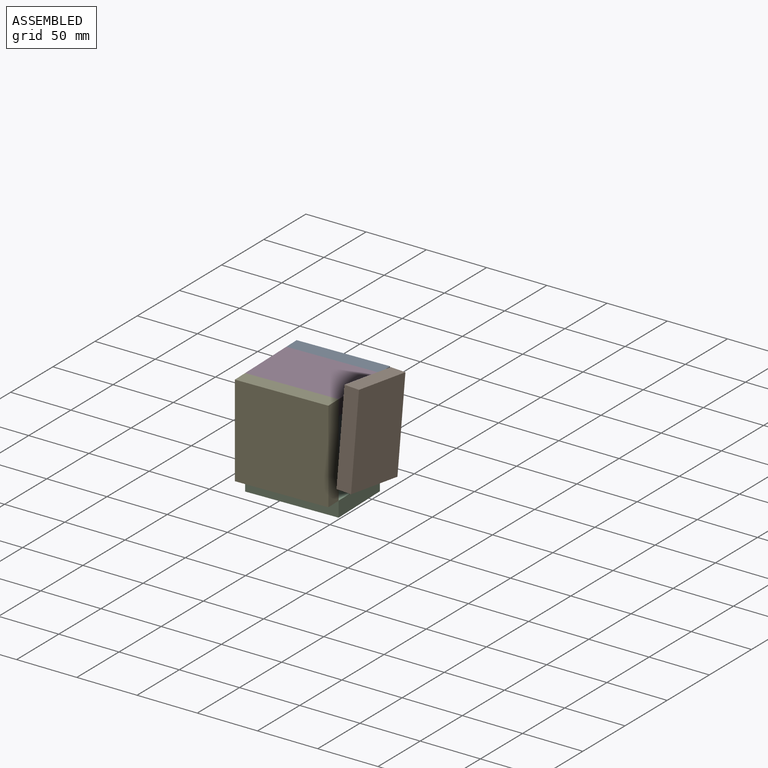
[diagram: assembled view]
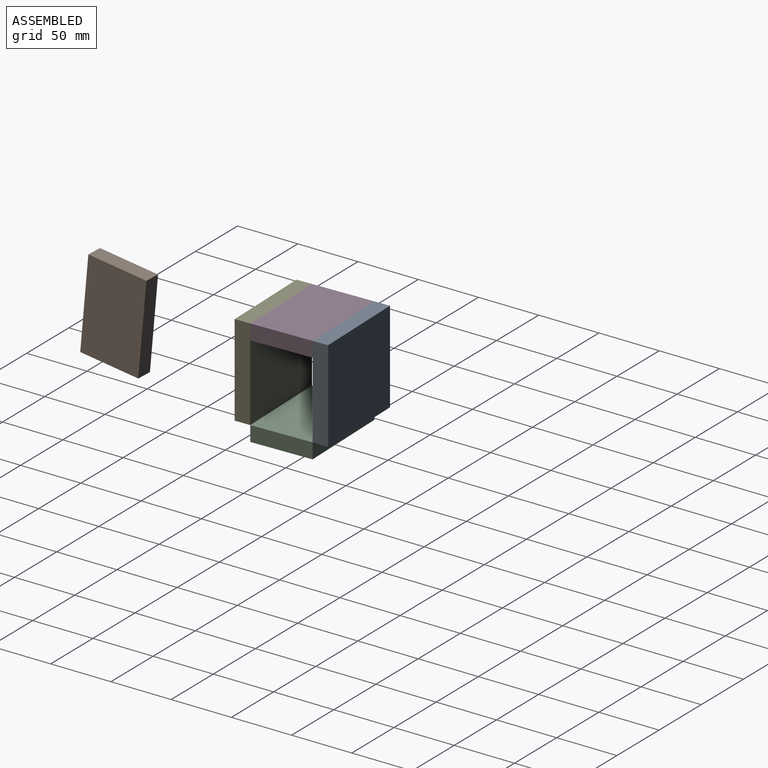
[diagram: assembled view, second angle]
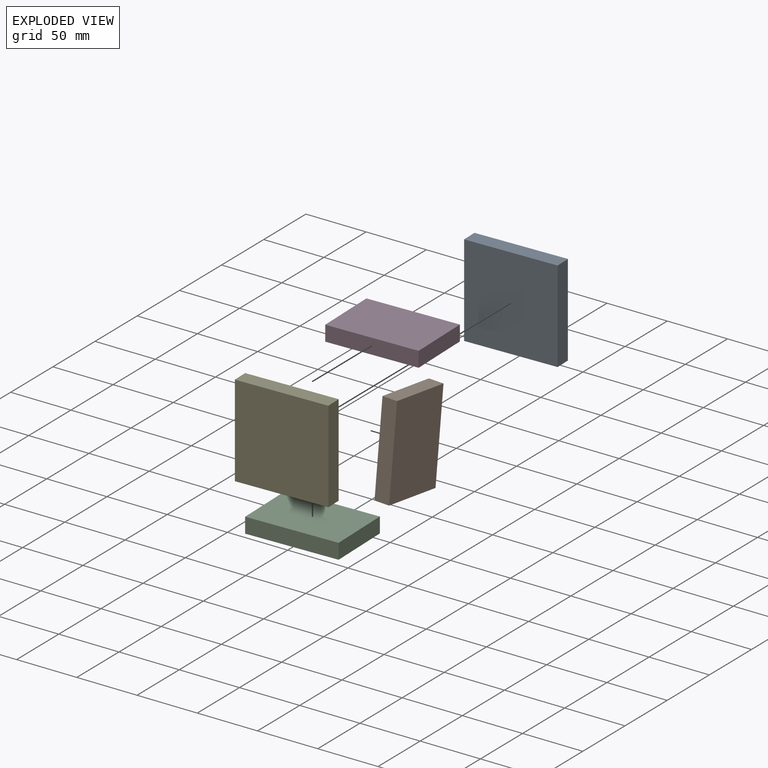
[diagram: exploded view]
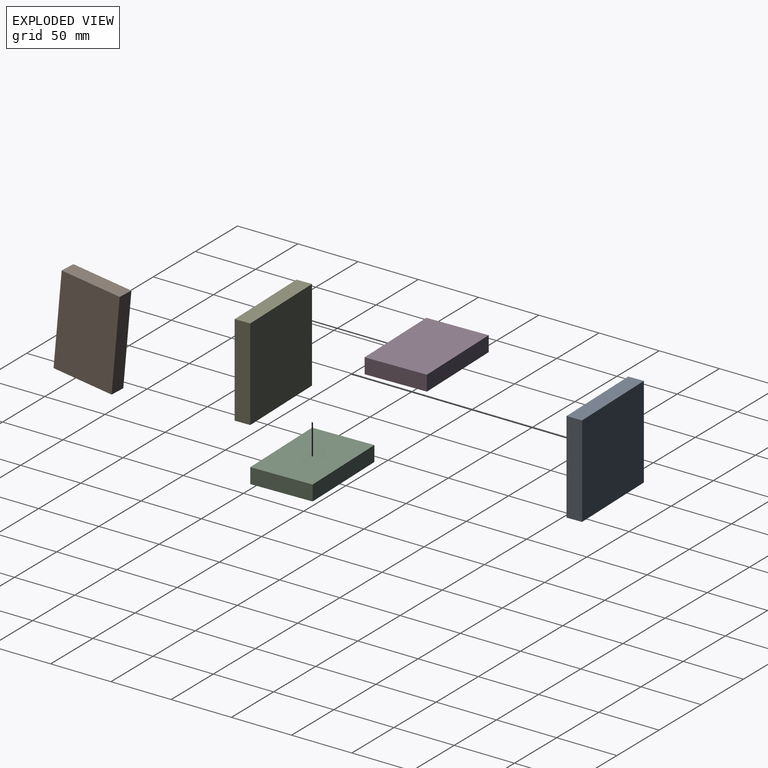
[diagram: exploded view, second angle]
ASSEMBLY  parts=5 mates=3
PART A: 6 faces, bbox 76.2x76.2x12.7 mm
  f0: plane 76.2x12.7mm, normal (0,1,0), area 967.7mm2, adj f1,f3,f4,f5
  f1: plane 76.2x12.7mm, normal (-1,0,0), area 967.7mm2, adj f0,f2,f4,f5
  f2: plane 76.2x12.7mm, normal (0,-1,0), area 967.7mm2, adj f1,f3,f4,f5
  f3: plane 76.2x12.7mm, normal (1,0,0), area 967.7mm2, adj f0,f2,f4,f5
  f4: plane 76.2x76.2mm, normal (0,0,1), area 5806.4mm2, adj f0,f1,f2,f3
  f5: plane 76.2x76.2mm, normal (0,0,-1), area 5806.4mm2, adj f0,f1,f2,f3
PART B: 6 faces, bbox 50.8x76.2x12.7 mm
  f0: plane 50.8x12.7mm, normal (0,1,0), area 645.2mm2, adj f1,f3,f4,f5
  f1: plane 76.2x12.7mm, normal (-1,0,0), area 967.7mm2, adj f0,f2,f4,f5
  f2: plane 50.8x12.7mm, normal (0,-1,0), area 645.2mm2, adj f1,f3,f4,f5
  f3: plane 76.2x12.7mm, normal (1,0,0), area 967.7mm2, adj f0,f2,f4,f5
  f4: plane 76.2x50.8mm, normal (0,0,1), area 3871mm2, adj f0,f1,f2,f3
  f5: plane 76.2x50.8mm, normal (0,0,-1), area 3871mm2, adj f0,f1,f2,f3
PART C: same geometry as B
PART D: same geometry as B
PART E: same geometry as A
PLACE A rot(axis=(-1,-0.01,0.01),90deg) t=(15.42,100.28,-15.17)mm
PLACE B rot(axis=(-0.62,-0.52,0.59),120.9deg) t=(117.43,-11.95,40.83)mm
PLACE C rot(axis=(0,0,-1),88.5deg) t=(16.1,74.89,-53.27)mm
PLACE D rot(axis=(0,0,1),91.5deg) t=(-9.29,74.21,22.93)mm
PLACE E rot(axis=(-1,-0.01,0.01),90deg) t=(17.11,36.8,-15.17)mm
MATE fastened E.f3 <-> D.f2  axis (1,0.03,0) through (42.17,50.17,35.63)mm
MATE fastened A.f5 <-> D.f3  axis (0.03,-1,0) through (2.72,99.94,35.63)mm
MATE fastened C.f3 <-> E.f4  axis (0.03,-1,0) through (42.17,50.17,-40.57)mm
